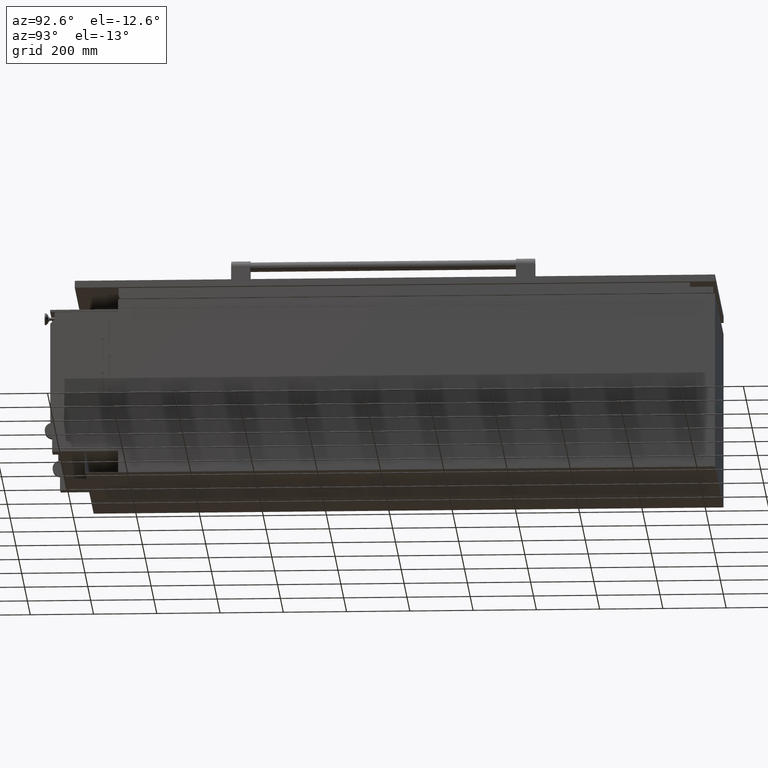
[diagram: clean part render]
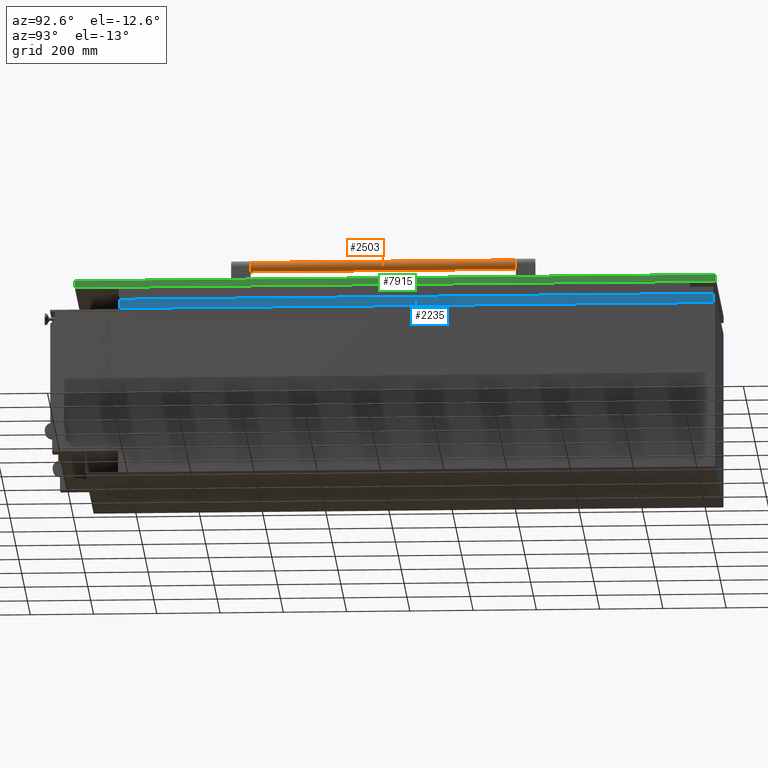
[diagram: same view with three faces highlighted in distinct colors, each labeled with its STEP entity id]
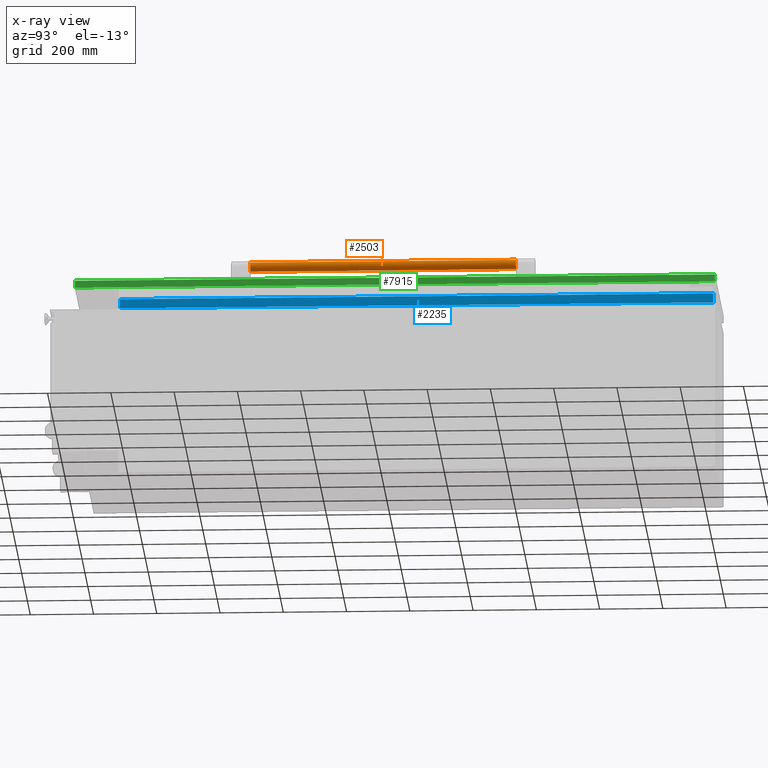
[diagram: x-ray of the same camera — body ghosted, the three highlighted faces saturated]
A machine part, auxiliary view with three faces highlighted in distinct colors.
The next image is the same camera in x-ray (body ghosted, the three faces saturated) — at least one of them is partly hidden behind the body in this view.
Their STEP definitions:

[orange] entity #2503 — the highlighted cylindrical surface (edge-blend (fillet) strip) has radius 15 mm, axis along (0, -1, -0).
#305 = AXIS2_PLACEMENT_3D ( 'NONE', #9513, #4174, #7203 ) ;
#375 = DIRECTION ( 'NONE',  ( 0.0000000000000000000, -1.000000000000000000, -0.0000000000000000000 ) ) ;
#453 = CARTESIAN_POINT ( 'NONE',  ( 848.9999993500003900, 420.0000000000001100, 404.0000000000000600 ) ) ;
#727 = VECTOR ( 'NONE', #8547, 1000.000000000000000 ) ;
#813 = LINE ( 'NONE', #2158, #7881 ) ;
#1073 = VERTEX_POINT ( 'NONE', #10122 ) ;
#1107 = LINE ( 'NONE', #453, #727 ) ;
#1318 = ORIENTED_EDGE ( 'NONE', *, *, #9332, .T. ) ;
#1432 = CARTESIAN_POINT ( 'NONE',  ( 848.9999993500003900, -420.0000000000000000, 389.0000000000000600 ) ) ;
#1529 = AXIS2_PLACEMENT_3D ( 'NONE', #1432, #8621, #4663 ) ;
#1858 = CYLINDRICAL_SURFACE ( 'NONE', #7662, 15.00000000000001400 ) ;
#2158 = CARTESIAN_POINT ( 'NONE',  ( 848.9999993500003900, 420.0000000000001100, 374.0000000000000600 ) ) ;
#2503 = ADVANCED_FACE ( 'NONE', ( #7438 ), #1858, .T. ) ;
#3783 = EDGE_LOOP ( 'NONE', ( #5911, #1318, #5680, #9438 ) ) ;
#3867 = EDGE_CURVE ( 'NONE', #1073, #6520, #813, .T. ) ;
#4174 = DIRECTION ( 'NONE',  ( 0.0000000000000000000, 1.000000000000000000, 0.0000000000000000000 ) ) ;
#4405 = CARTESIAN_POINT ( 'NONE',  ( 848.9999993500003900, 420.0000000000001100, 389.0000000000000600 ) ) ;
#4663 = DIRECTION ( 'NONE',  ( 0.0000000000000000000, 0.0000000000000000000, -1.000000000000000000 ) ) ;
#5029 = EDGE_CURVE ( 'NONE', #8168, #1073, #6283, .T. ) ;
#5564 = DIRECTION ( 'NONE',  ( 0.0000000000000000000, -1.000000000000000000, -0.0000000000000000000 ) ) ;
#5680 = ORIENTED_EDGE ( 'NONE', *, *, #7554, .F. ) ;
#5911 = ORIENTED_EDGE ( 'NONE', *, *, #5029, .F. ) ;
#6283 = CIRCLE ( 'NONE', #305, 15.00000000000001400 ) ;
#6520 = VERTEX_POINT ( 'NONE', #10294 ) ;
#6545 = CARTESIAN_POINT ( 'NONE',  ( 848.9999993500003900, -420.0000000000000000, 404.0000000000000600 ) ) ;
#7013 = CIRCLE ( 'NONE', #1529, 15.00000000000001400 ) ;
#7203 = DIRECTION ( 'NONE',  ( 0.0000000000000000000, 0.0000000000000000000, 1.000000000000000000 ) ) ;
#7438 = FACE_OUTER_BOUND ( 'NONE', #3783, .T. ) ;
#7554 = EDGE_CURVE ( 'NONE', #6520, #9277, #7013, .T. ) ;
#7662 = AXIS2_PLACEMENT_3D ( 'NONE', #4405, #375, #9025 ) ;
#7881 = VECTOR ( 'NONE', #5564, 1000.000000000000000 ) ;
#8168 = VERTEX_POINT ( 'NONE', #9954 ) ;
#8547 = DIRECTION ( 'NONE',  ( 0.0000000000000000000, -1.000000000000000000, -0.0000000000000000000 ) ) ;
#8621 = DIRECTION ( 'NONE',  ( 0.0000000000000000000, -1.000000000000000000, 0.0000000000000000000 ) ) ;
#9025 = DIRECTION ( 'NONE',  ( 0.0000000000000000000, 0.0000000000000000000, -1.000000000000000000 ) ) ;
#9277 = VERTEX_POINT ( 'NONE', #6545 ) ;
#9332 = EDGE_CURVE ( 'NONE', #8168, #9277, #1107, .T. ) ;
#9438 = ORIENTED_EDGE ( 'NONE', *, *, #3867, .F. ) ;
#9513 = CARTESIAN_POINT ( 'NONE',  ( 848.9999993500003900, 420.0000000000001100, 389.0000000000000600 ) ) ;
#9954 = CARTESIAN_POINT ( 'NONE',  ( 848.9999993500003900, 420.0000000000001100, 404.0000000000000600 ) ) ;
#10122 = CARTESIAN_POINT ( 'NONE',  ( 848.9999993500003900, 420.0000000000001100, 374.0000000000000600 ) ) ;
#10294 = CARTESIAN_POINT ( 'NONE',  ( 848.9999993500003900, -420.0000000000000000, 374.0000000000000600 ) ) ;

[blue] entity #2235 — the highlighted planar face has unit normal (-1, 0, 0).
#331 = ORIENTED_EDGE ( 'NONE', *, *, #2631, .T. ) ;
#691 = ORIENTED_EDGE ( 'NONE', *, *, #5673, .F. ) ;
#713 = CARTESIAN_POINT ( 'NONE',  ( 893.9999998500003400, 1045.850000000000100, 250.0000030000001300 ) ) ;
#901 = DIRECTION ( 'NONE',  ( 0.0000000000000000000, -2.775557561562891700E-015, 1.000000000000000000 ) ) ;
#981 = CARTESIAN_POINT ( 'NONE',  ( 893.9999998500003400, 1100.901327281558900, 250.0000030000001300 ) ) ;
#2235 = ADVANCED_FACE ( 'NONE', ( #6120 ), #5449, .F. ) ;
#2590 = VERTEX_POINT ( 'NONE', #2712 ) ;
#2631 = EDGE_CURVE ( 'NONE', #5333, #2590, #9168, .T. ) ;
#2712 = CARTESIAN_POINT ( 'NONE',  ( 893.9999998500003400, 1045.850000000000100, 279.5000000500002100 ) ) ;
#2985 = DIRECTION ( 'NONE',  ( 0.0000000000000000000, 0.0000000000000000000, -1.000000000000000000 ) ) ;
#3017 = ORIENTED_EDGE ( 'NONE', *, *, #3900, .F. ) ;
#3021 = CARTESIAN_POINT ( 'NONE',  ( 893.9999998500003400, 1100.901327281558900, 279.5000000500002100 ) ) ;
#3213 = VECTOR ( 'NONE', #6003, 1000.000000000000000 ) ;
#3448 = LINE ( 'NONE', #981, #5952 ) ;
#3710 = VERTEX_POINT ( 'NONE', #9026 ) ;
#3876 = CARTESIAN_POINT ( 'NONE',  ( 893.9999998500003400, 1100.901327281558900, 279.5000000500002100 ) ) ;
#3900 = EDGE_CURVE ( 'NONE', #5333, #7768, #3448, .T. ) ;
#3975 = EDGE_CURVE ( 'NONE', #2590, #3710, #5809, .T. ) ;
#3978 = DIRECTION ( 'NONE',  ( 0.0000000000000000000, -1.000000000000000000, -0.0000000000000000000 ) ) ;
#4438 = CARTESIAN_POINT ( 'NONE',  ( 893.9999998500003400, 1045.850000000000100, 279.5000000500002100 ) ) ;
#4687 = DIRECTION ( 'NONE',  ( -1.000000000000000000, 0.0000000000000000000, 0.0000000000000000000 ) ) ;
#4693 = CARTESIAN_POINT ( 'NONE',  ( 893.9999998500003400, -831.1499999999994100, 250.0000030000001300 ) ) ;
#5333 = VERTEX_POINT ( 'NONE', #713 ) ;
#5449 = PLANE ( 'NONE',  #9649 ) ;
#5673 = EDGE_CURVE ( 'NONE', #7768, #3710, #8197, .T. ) ;
#5696 = CARTESIAN_POINT ( 'NONE',  ( 893.9999998500003400, -831.1499999999995200, 279.5000000500003800 ) ) ;
#5809 = LINE ( 'NONE', #3876, #8379 ) ;
#5952 = VECTOR ( 'NONE', #7815, 1000.000000000000000 ) ;
#6003 = DIRECTION ( 'NONE',  ( 0.0000000000000000000, 0.0000000000000000000, 1.000000000000000000 ) ) ;
#6120 = FACE_OUTER_BOUND ( 'NONE', #9483, .T. ) ;
#7768 = VERTEX_POINT ( 'NONE', #4693 ) ;
#7815 = DIRECTION ( 'NONE',  ( 0.0000000000000000000, -1.000000000000000000, -0.0000000000000000000 ) ) ;
#8197 = LINE ( 'NONE', #5696, #9315 ) ;
#8379 = VECTOR ( 'NONE', #3978, 1000.000000000000000 ) ;
#9026 = CARTESIAN_POINT ( 'NONE',  ( 893.9999998500003400, -831.1499999999995200, 279.5000000500002100 ) ) ;
#9168 = LINE ( 'NONE', #4438, #3213 ) ;
#9315 = VECTOR ( 'NONE', #901, 1000.000000000000000 ) ;
#9380 = ORIENTED_EDGE ( 'NONE', *, *, #3975, .T. ) ;
#9483 = EDGE_LOOP ( 'NONE', ( #331, #9380, #691, #3017 ) ) ;
#9649 = AXIS2_PLACEMENT_3D ( 'NONE', #3021, #4687, #2985 ) ;

[green] entity #7915 — the highlighted planar face has unit normal (-1, 0, 0).
#217 = CARTESIAN_POINT ( 'NONE',  ( 896.9999993500003900, -973.1499999999999800, 340.0000000000000600 ) ) ;
#295 = EDGE_LOOP ( 'NONE', ( #7577, #5455, #8470, #732 ) ) ;
#526 = VECTOR ( 'NONE', #3222, 1000.000000000000000 ) ;
#626 = VERTEX_POINT ( 'NONE', #6301 ) ;
#732 = ORIENTED_EDGE ( 'NONE', *, *, #7969, .T. ) ;
#1566 = CARTESIAN_POINT ( 'NONE',  ( 896.9999993500003900, -973.1499999999999800, 318.0000000000001100 ) ) ;
#1783 = LINE ( 'NONE', #1566, #6405 ) ;
#2099 = CARTESIAN_POINT ( 'NONE',  ( 896.9999993500003900, -973.1499999999999800, 340.0000000000000600 ) ) ;
#2662 = LINE ( 'NONE', #5644, #526 ) ;
#2891 = DIRECTION ( 'NONE',  ( -1.000000000000000000, 0.0000000000000000000, 0.0000000000000000000 ) ) ;
#3222 = DIRECTION ( 'NONE',  ( 0.0000000000000000000, -0.0000000000000000000, -1.000000000000000000 ) ) ;
#3324 = AXIS2_PLACEMENT_3D ( 'NONE', #2099, #2891, #9222 ) ;
#4172 = EDGE_CURVE ( 'NONE', #9020, #6796, #5562, .T. ) ;
#4456 = CARTESIAN_POINT ( 'NONE',  ( 896.9999993500003900, -973.1499999999999800, 318.0000000000001100 ) ) ;
#5455 = ORIENTED_EDGE ( 'NONE', *, *, #4172, .F. ) ;
#5562 = LINE ( 'NONE', #8116, #5690 ) ;
#5644 = CARTESIAN_POINT ( 'NONE',  ( 896.9999993500003900, -973.1499999999999800, 340.0000000000000600 ) ) ;
#5678 = EDGE_CURVE ( 'NONE', #9020, #626, #8448, .T. ) ;
#5690 = VECTOR ( 'NONE', #8046, 1000.000000000000000 ) ;
#5840 = DIRECTION ( 'NONE',  ( 0.0000000000000000000, -1.000000000000000000, -0.0000000000000000000 ) ) ;
#5868 = VERTEX_POINT ( 'NONE', #4456 ) ;
#6301 = CARTESIAN_POINT ( 'NONE',  ( 896.9999993500003900, -973.1499999999999800, 340.0000000000000600 ) ) ;
#6405 = VECTOR ( 'NONE', #10244, 1000.000000000000000 ) ;
#6796 = VERTEX_POINT ( 'NONE', #9067 ) ;
#7112 = CARTESIAN_POINT ( 'NONE',  ( 896.9999993500003900, 1050.850000000000100, 340.0000000000000600 ) ) ;
#7232 = FACE_OUTER_BOUND ( 'NONE', #295, .T. ) ;
#7577 = ORIENTED_EDGE ( 'NONE', *, *, #7583, .T. ) ;
#7583 = EDGE_CURVE ( 'NONE', #5868, #6796, #1783, .T. ) ;
#7915 = ADVANCED_FACE ( 'NONE', ( #7232 ), #10130, .F. ) ;
#7969 = EDGE_CURVE ( 'NONE', #626, #5868, #2662, .T. ) ;
#8046 = DIRECTION ( 'NONE',  ( 0.0000000000000000000, -0.0000000000000000000, -1.000000000000000000 ) ) ;
#8116 = CARTESIAN_POINT ( 'NONE',  ( 896.9999993500003900, 1050.850000000000100, 340.0000000000000600 ) ) ;
#8448 = LINE ( 'NONE', #217, #8553 ) ;
#8470 = ORIENTED_EDGE ( 'NONE', *, *, #5678, .T. ) ;
#8553 = VECTOR ( 'NONE', #5840, 1000.000000000000000 ) ;
#9020 = VERTEX_POINT ( 'NONE', #7112 ) ;
#9067 = CARTESIAN_POINT ( 'NONE',  ( 896.9999993500003900, 1050.850000000000100, 318.0000000000001100 ) ) ;
#9222 = DIRECTION ( 'NONE',  ( 0.0000000000000000000, 0.0000000000000000000, -1.000000000000000000 ) ) ;
#10130 = PLANE ( 'NONE',  #3324 ) ;
#10244 = DIRECTION ( 'NONE',  ( 0.0000000000000000000, 1.000000000000000000, 0.0000000000000000000 ) ) ;